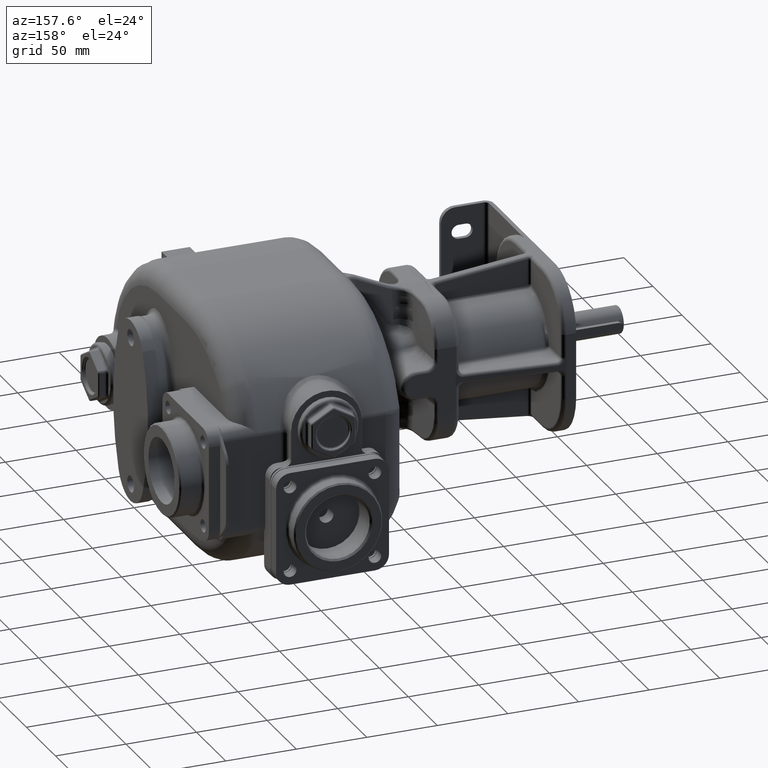
[diagram: clean part render]
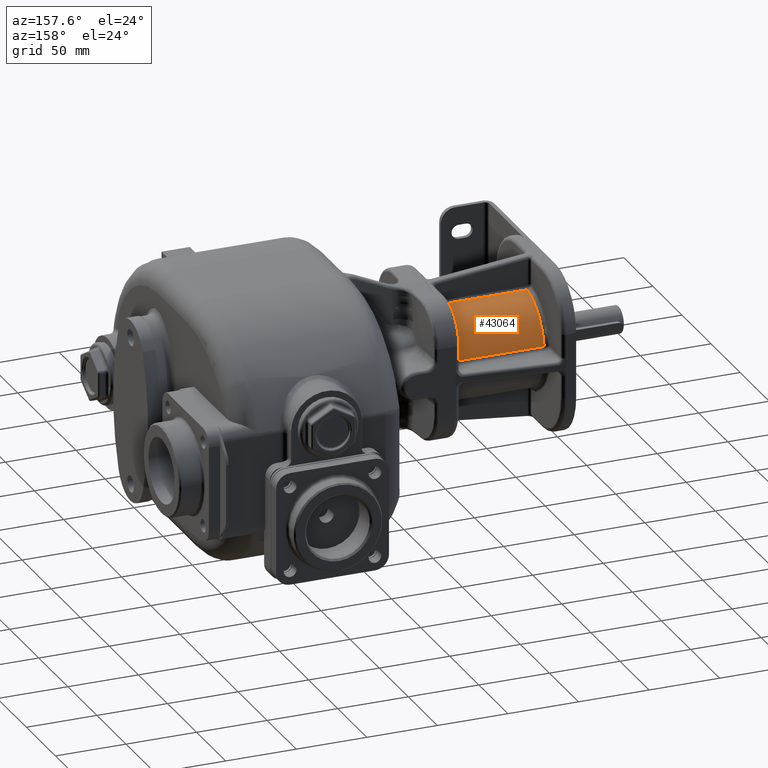
[diagram: same view with one face highlighted and labeled with its STEP entity id]
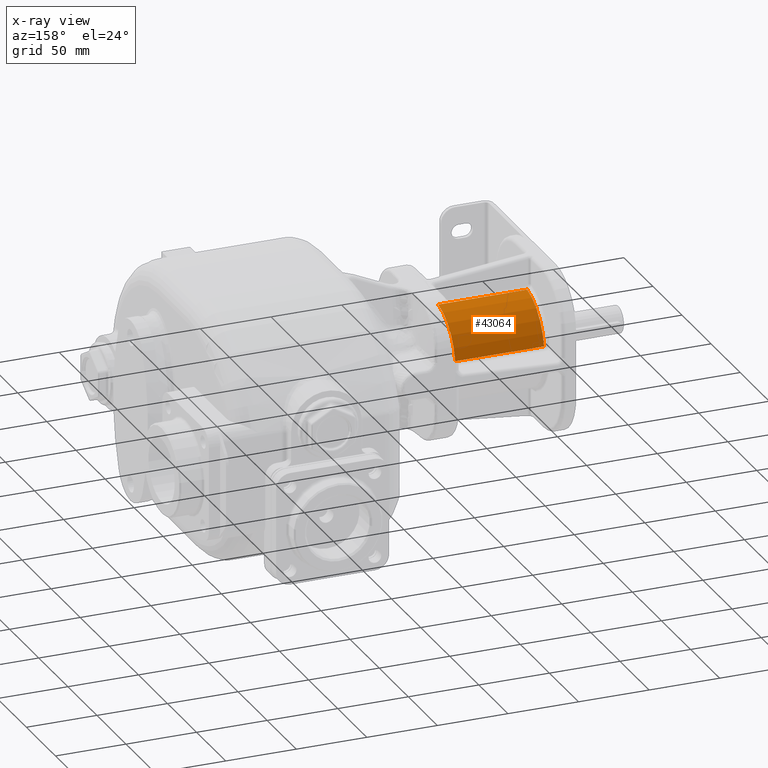
[diagram: x-ray of the same camera — body ghosted, the highlighted face saturated]
A machine part, auxiliary view. The second image highlights one B-rep face of the part: STEP entity #43064.
The next image is the same camera in x-ray: the body ghosted, the highlighted face saturated — about 0% of this face is hidden behind the body in this view.
In plain terms, the highlighted cylindrical surface (partial cylindrical patch) has radius 35 mm, axis along (-1, 0, 0).
Its self-contained STEP definition (entity closure, byte-faithful):
#12017=CARTESIAN_POINT('',(-2.098E2,9.520270270378E1,3.461115261128E1));
#12036=CARTESIAN_POINT('',(-2.098E2,9.E1,0.E0));
#12037=DIRECTION('',(1.E0,0.E0,0.E0));
#12038=DIRECTION('',(0.E0,9.852618927117E-1,1.710526315789E-1));
#12039=AXIS2_PLACEMENT_3D('',#12036,#12037,#12038);
#12111=DIRECTION('',(-1.E0,1.071002193457E-12,7.127194777919E-12));
#12112=VECTOR('',#12111,6.3E1);
#12113=CARTESIAN_POINT('',(-1.468E2,9.520270270371E1,3.461115261083E1));
#12114=LINE('',#12113,#12112);
#12115=DIRECTION('',(1.E0,0.E0,0.E0));
#12116=VECTOR('',#12115,6.3E1);
#12117=CARTESIAN_POINT('',(-2.098E2,1.244841662449E2,5.986842105263E0));
#12118=LINE('',#12117,#12116);
#12138=CARTESIAN_POINT('',(-1.468E2,9.E1,0.E0));
#12139=DIRECTION('',(-1.E0,0.E0,0.E0));
#12140=DIRECTION('',(0.E0,1.486486486486E-1,9.888900744041E-1));
#12141=AXIS2_PLACEMENT_3D('',#12138,#12139,#12140);
#15910=CARTESIAN_POINT('',(-1.468E2,1.244841662449E2,5.986842105263E0));
#15911=VERTEX_POINT('',#15910);
#15912=CARTESIAN_POINT('',(-2.098E2,1.244841662449E2,5.986842105263E0));
#15913=VERTEX_POINT('',#15912);
#16040=VERTEX_POINT('',#12017);
#16041=CARTESIAN_POINT('',(-1.468E2,9.520270270371E1,3.461115261083E1));
#16042=VERTEX_POINT('',#16041);
#43051=CARTESIAN_POINT('',(-1.271E2,9.E1,0.E0));
#43052=DIRECTION('',(-1.E0,0.E0,0.E0));
#43053=DIRECTION('',(0.E0,-1.E0,0.E0));
#43054=AXIS2_PLACEMENT_3D('',#43051,#43052,#43053);
#43055=CYLINDRICAL_SURFACE('',#43054,3.5E1);
#43057=ORIENTED_EDGE('',*,*,#43056,.T.);
#43058=ORIENTED_EDGE('',*,*,#42977,.F.);
#43059=ORIENTED_EDGE('',*,*,#43042,.T.);
#43061=ORIENTED_EDGE('',*,*,#43060,.F.);
#43062=EDGE_LOOP('',(#43057,#43058,#43059,#43061));
#43063=FACE_OUTER_BOUND('',#43062,.F.);
#43064=ADVANCED_FACE('',(#43063),#43055,.T.);
#12040=CIRCLE('',#12039,3.5E1);
#12142=CIRCLE('',#12141,3.5E1);
#42977=EDGE_CURVE('',#15913,#16040,#12040,.T.);
#43042=EDGE_CURVE('',#15913,#15911,#12118,.T.);
#43056=EDGE_CURVE('',#16042,#16040,#12114,.T.);
#43060=EDGE_CURVE('',#16042,#15911,#12142,.T.);